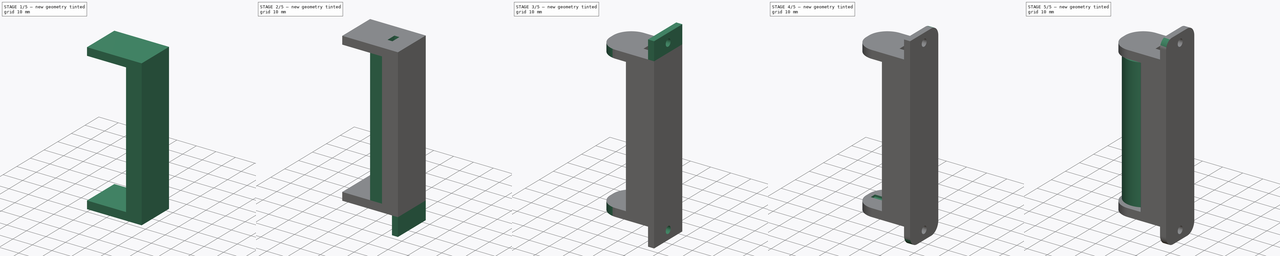
[diagram: build sequence overview — one tinted view per stage of 5, left to right]
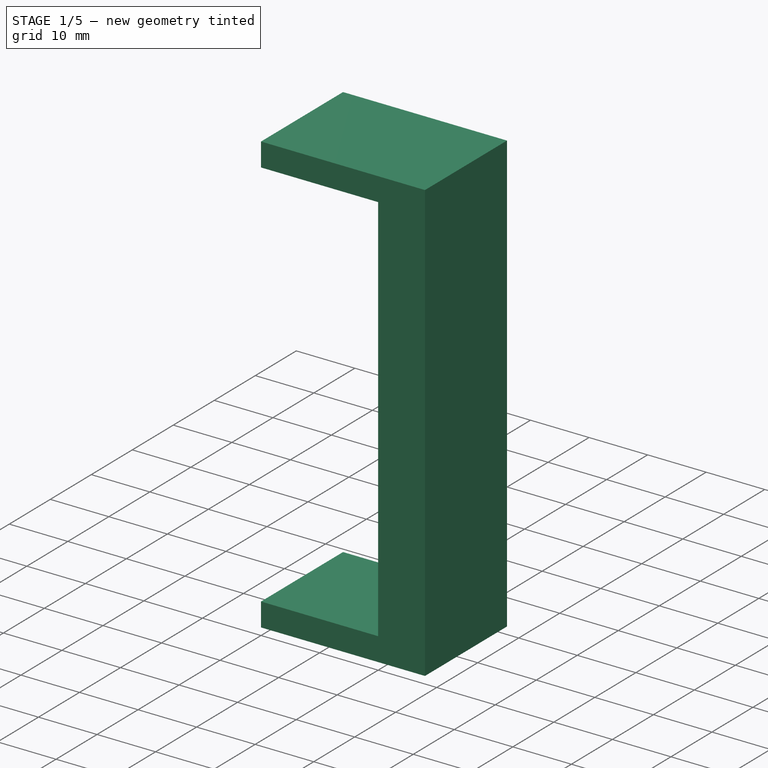
[diagram: stage 1 of 5 — iso view after this stage's code; geometry added in this stage tinted green]
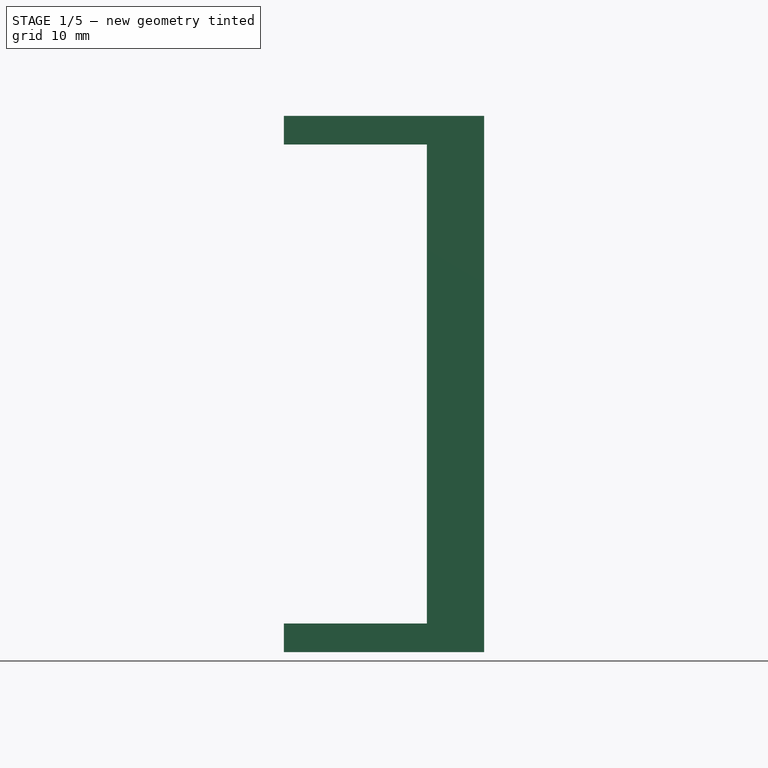
[diagram: stage 1 of 5 — front view after this stage's code; geometry added in this stage tinted green]
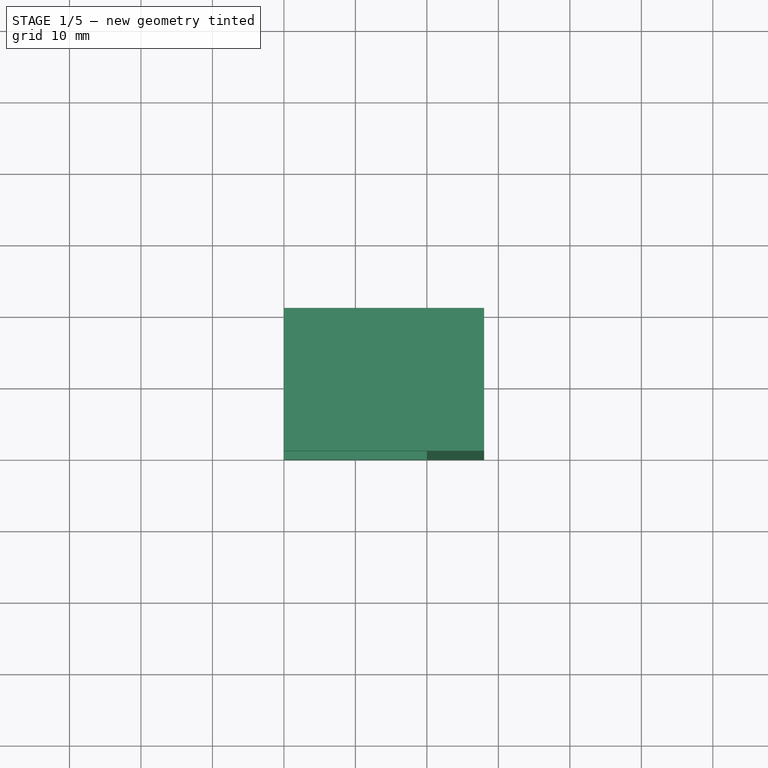
[diagram: stage 1 of 5 — top view after this stage's code; geometry added in this stage tinted green]
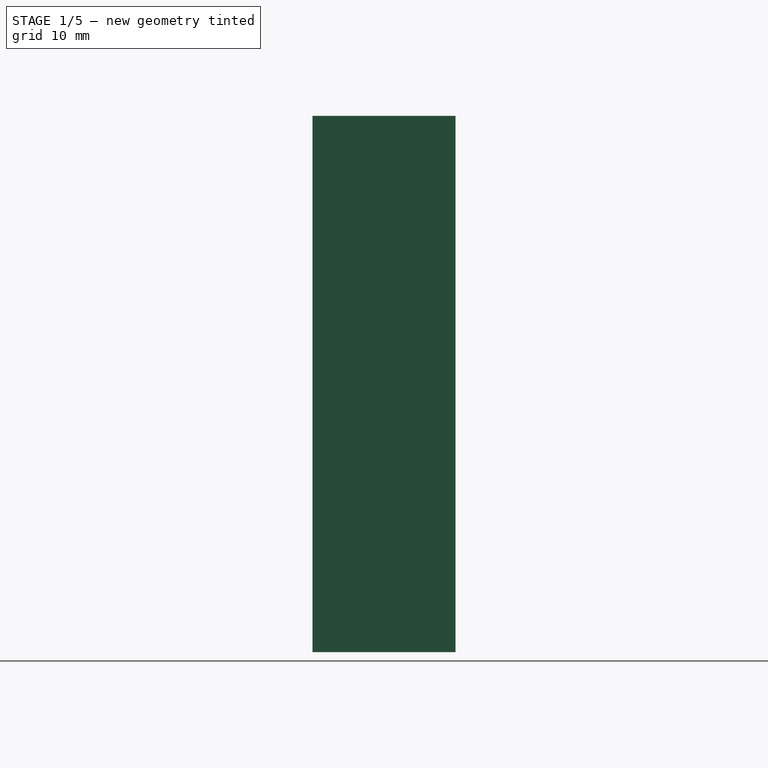
[diagram: stage 1 of 5 — right view after this stage's code; geometry added in this stage tinted green]
FCSTD DOCUMENT  (FreeCAD 0.18.4R)
Label: pinza18650
License: All rights reserved
LicenseURL: http://en.wikipedia.org/wiki/All_rights_reserved
objects: Sketcher::SketchObject×9, PartDesign::Pad×6, PartDesign::Fillet×4, PartDesign::Pocket×3, PartDesign::Body×2, PartDesign::Point×2, PartDesign::PolarPattern×2, PartDesign::Line×1
note: 38 computed .brp shape members not serialized (recipe doc carries the construction recipe); baked Part::Feature solids carry a one-line shape summary decoded from their .brp

FEATURE [PartDesign::Body] Body
  Group = -> [Sketch,Pad]
  Origin = -> Origin
  Tip = -> Pad
FEATURE [Sketcher::SketchObject] Sketch001
  AttachmentOffset = pos=(0,0,-1) rot=(0,0,1;0rad)
  MapMode = 5
  Placement = pos=(0,0,-1) rot=(0,0,1;0rad)
  Support = -> [XY_Plane001]
  sketch-geometry (6):
    g0: LineSegment StartX=-10 StartY=10 StartZ=0 EndX=18 EndY=10 EndZ=0
    g1: LineSegment StartX=18 StartY=10 StartZ=0 EndX=18 EndY=-10 EndZ=0
    g2: LineSegment StartX=18 StartY=-10 StartZ=0 EndX=-10 EndY=-10 EndZ=0
    g3: LineSegment StartX=-10 StartY=-10 StartZ=0 EndX=-10 EndY=10 EndZ=0
    g4: LineSegment [constr] StartX=-10 StartY=10 StartZ=0 EndX=0 EndY=0 EndZ=0
    g5: LineSegment [constr] StartX=0 StartY=0 StartZ=0 EndX=-10 EndY=-10 EndZ=0
  constraints (16):
    c: Coincident(g0,g1)
    c: Coincident(g1,g2)
    c: Coincident(g2,g3)
    c: Coincident(g3,g0)
    c: Horizontal(g0)
    c: Horizontal(g2)
    c: Vertical(g1)
    c: Vertical(g3)
    c: Equal(g4,g5)
    c: Coincident(g4,g0)
    c: Coincident(g5,g2)
    c: Coincident(g5,g4)
    c: Coincident(g4,g-1)
    c: DistanceY(g3,g3) = 20
    c: DistanceX(g0,g-1) = 10
    c: DistanceX(g0,g0) = 28
FEATURE [PartDesign::Pad] Pad001
  Length = 4
  Length2 = 100
  Profile = -> Sketch001
  Reversed = true
  Type = 0
FEATURE [Sketcher::SketchObject] Sketch002
  ExternalGeometry = -> [Pad001]
  MapMode = 5
  Placement = pos=(0,0,-1) rot=(0,0,1;0rad)
  Support = -> [Pad001]
  sketch-geometry (4):
    g0: LineSegment StartX=10 StartY=10 StartZ=0 EndX=18 EndY=10 EndZ=0
    g1: LineSegment StartX=18 StartY=10 StartZ=0 EndX=18 EndY=-10 EndZ=0
    g2: LineSegment StartX=18 StartY=-10 StartZ=0 EndX=10 EndY=-10 EndZ=0
    g3: LineSegment StartX=10 StartY=-10 StartZ=0 EndX=10 EndY=10 EndZ=0
  constraints (10):
    c: Coincident(g0,g1)
    c: Coincident(g1,g2)
    c: Coincident(g2,g3)
    c: Coincident(g3,g0)
    c: Horizontal(g0)
    c: Horizontal(g2)
    c: Vertical(g3)
    c: Coincident(g0,g-3)
    c: Coincident(g1,g-3)
    c: DistanceX(g0,g0) = 8
FEATURE [PartDesign::Pad] Pad002
  BaseFeature = -> Pad001
  Length = 67
  Length2 = 100
  Profile = -> Sketch002
  Type = 0
FEATURE [Sketcher::SketchObject] Sketch003
  ExternalGeometry = -> [Pad002]
  MapMode = 5
  Placement = pos=(0,0,66) rot=(0,0,1;0rad)
  Support = -> [Pad002]
  sketch-geometry (4):
    g0: LineSegment StartX=-10 StartY=10 StartZ=0 EndX=18 EndY=10 EndZ=0
    g1: LineSegment StartX=18 StartY=10 StartZ=0 EndX=18 EndY=-10 EndZ=0
    g2: LineSegment StartX=18 StartY=-10 StartZ=0 EndX=-10 EndY=-10 EndZ=0
    g3: LineSegment StartX=-10 StartY=-10 StartZ=0 EndX=-10 EndY=10 EndZ=0
  constraints (8):
    c: Coincident(g0,g1)
    c: Coincident(g1,g2)
    c: Coincident(g2,g3)
    c: Coincident(g3,g0)
    c: Coincident(g0,g-4)
    c: Coincident(g2,g-5)
    c: Coincident(g1,g-7)
    c: Coincident(g0,g-8)
FEATURE [PartDesign::Pad] Pad003
  BaseFeature = -> Pad002
  Length = 4
  Length2 = 100
  Profile = -> Sketch003
  Type = 0
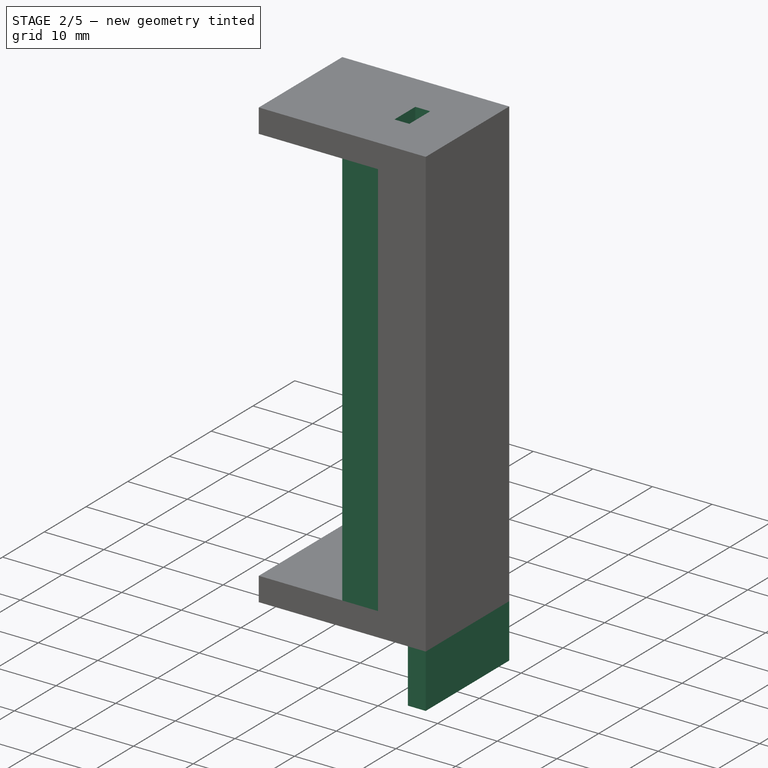
[diagram: stage 2 of 5 — iso view after this stage's code; geometry added in this stage tinted green]
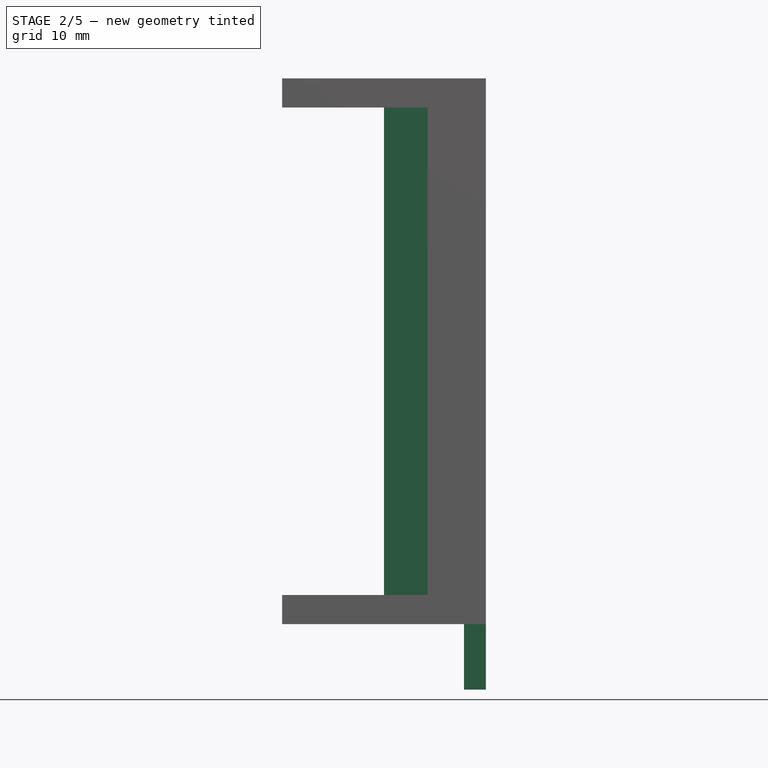
[diagram: stage 2 of 5 — front view after this stage's code; geometry added in this stage tinted green]
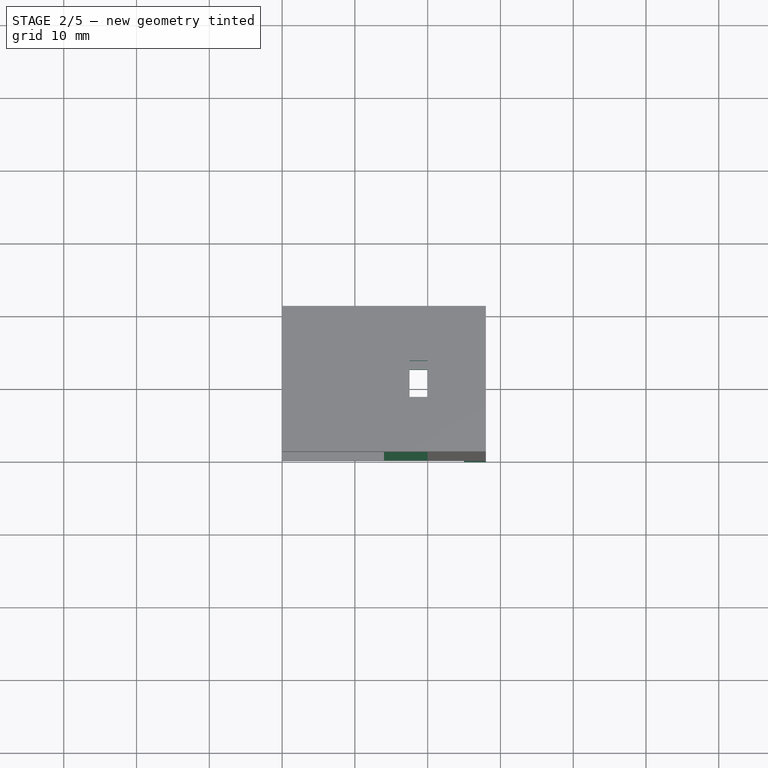
[diagram: stage 2 of 5 — top view after this stage's code; geometry added in this stage tinted green]
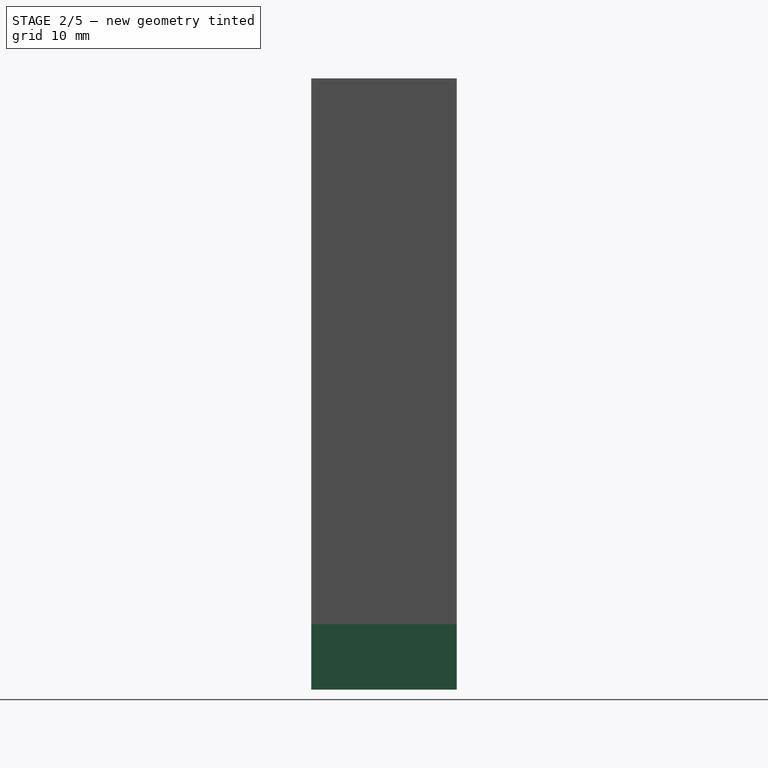
[diagram: stage 2 of 5 — right view after this stage's code; geometry added in this stage tinted green]
FEATURE [Sketcher::SketchObject] Sketch004
  ExternalGeometry = -> [Pad003]
  MapMode = 5
  Placement = pos=(0,0,-5) rot=(1,0,0;3.14159rad)
  Support = -> [Pad003]
  sketch-geometry (4):
    g0: LineSegment StartX=7.5 StartY=2.5 StartZ=0 EndX=10 EndY=2.5 EndZ=0
    g1: LineSegment StartX=10 StartY=2.5 StartZ=0 EndX=10 EndY=-2.5 EndZ=0
    g2: LineSegment StartX=10 StartY=-2.5 StartZ=0 EndX=7.5 EndY=-2.5 EndZ=0
    g3: LineSegment StartX=7.5 StartY=-2.5 StartZ=0 EndX=7.5 EndY=2.5 EndZ=0
  constraints (12):
    c: Coincident(g0,g1)
    c: Coincident(g1,g2)
    c: Coincident(g2,g3)
    c: Coincident(g3,g0)
    c: Horizontal(g0)
    c: Horizontal(g2)
    c: Vertical(g1)
    c: Vertical(g3)
    c: DistanceY(g-1,g0) = 2.5
    c: DistanceY(g1,g-1) = 2.5
    c: DistanceX(g0,g0) = 2.5
    c: PointOnObject(g1,g-3)
FEATURE [PartDesign::Pocket] Pocket
  BaseFeature = -> Pad003
  Length = 5
  Length2 = 100
  Profile = -> Sketch004
  Type = 1
FEATURE [Sketcher::SketchObject] Sketch005
  ExternalGeometry = -> [Pocket]
  MapMode = 5
  Placement = pos=(0,0,-5) rot=(1,0,0;3.14159rad)
  Support = -> [Pocket]
  sketch-geometry (6):
    g0: LineSegment StartX=10 StartY=-10 StartZ=0 EndX=4 EndY=-10 EndZ=0
    g1: LineSegment StartX=4 StartY=-10 StartZ=0 EndX=10 EndY=-6 EndZ=0
    g2: LineSegment StartX=10 StartY=-6 StartZ=0 EndX=10 EndY=-10 EndZ=0
    g3: LineSegment StartX=10 StartY=6 StartZ=0 EndX=4 EndY=10 EndZ=0
    g4: LineSegment StartX=4 StartY=10 StartZ=0 EndX=10 EndY=10 EndZ=0
    g5: LineSegment StartX=10 StartY=10 StartZ=0 EndX=10 EndY=6 EndZ=0
  constraints (16):
    c: Coincident(g0,g1)
    c: Coincident(g1,g2)
    c: Coincident(g2,g0)
    c: Coincident(g0,g-4)
    c: PointOnObject(g1,g-4)
    c: PointOnObject(g0,g-3)
    c: DistanceY(g2,g2) = 4
    c: DistanceX(g0,g0) = 6
    c: Coincident(g3,g4)
    c: Coincident(g4,g5)
    c: Coincident(g5,g3)
    c: Coincident(g4,g-5)
    c: PointOnObject(g3,g-6)
    c: PointOnObject(g3,g-5)
    c: DistanceY(g5,g5) = 4
    c: DistanceX(g4,g4) = 6
FEATURE [PartDesign::Pad] Pad004
  BaseFeature = -> Pocket
  Length = 75
  Length2 = 100
  Profile = -> Sketch005
  Reversed = true
  Type = 0
FEATURE [Sketcher::SketchObject] Sketch006
  ExternalGeometry = -> [Pad004]
  MapMode = 5
  Placement = pos=(0,0,-5) rot=(1,0,0;3.14159rad)
  Support = -> [Pad004]
  sketch-geometry (4):
    g0: LineSegment StartX=15 StartY=10 StartZ=0 EndX=18 EndY=10 EndZ=0
    g1: LineSegment StartX=18 StartY=10 StartZ=0 EndX=18 EndY=-10 EndZ=0
    g2: LineSegment StartX=18 StartY=-10 StartZ=0 EndX=15 EndY=-10 EndZ=0
    g3: LineSegment StartX=15 StartY=-10 StartZ=0 EndX=15 EndY=10 EndZ=0
  constraints (10):
    c: Coincident(g0,g1)
    c: Coincident(g1,g2)
    c: Coincident(g2,g3)
    c: Coincident(g3,g0)
    c: Horizontal(g0)
    c: Horizontal(g2)
    c: Vertical(g3)
    c: Coincident(g1,g-3)
    c: Coincident(g0,g-3)
    c: DistanceX(g0,g0) = 3
FEATURE [PartDesign::Point] DatumPoint
  AttacherType = Attacher::AttachEnginePoint
  MapMode = 37
  Placement = pos=(18,0,32.5) rot=(0,0,1;0rad)
  Support = -> [Pad004]
FEATURE [PartDesign::Pad] Pad005
  BaseFeature = -> Pad004
  Length = 9
  Length2 = 100
  Profile = -> Sketch006
  Type = 0
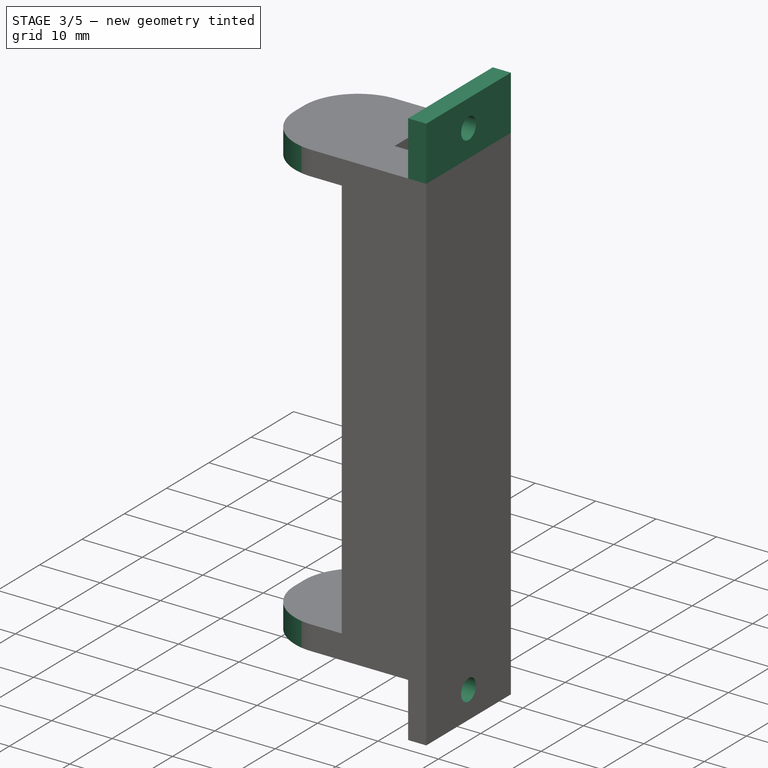
[diagram: stage 3 of 5 — iso view after this stage's code; geometry added in this stage tinted green]
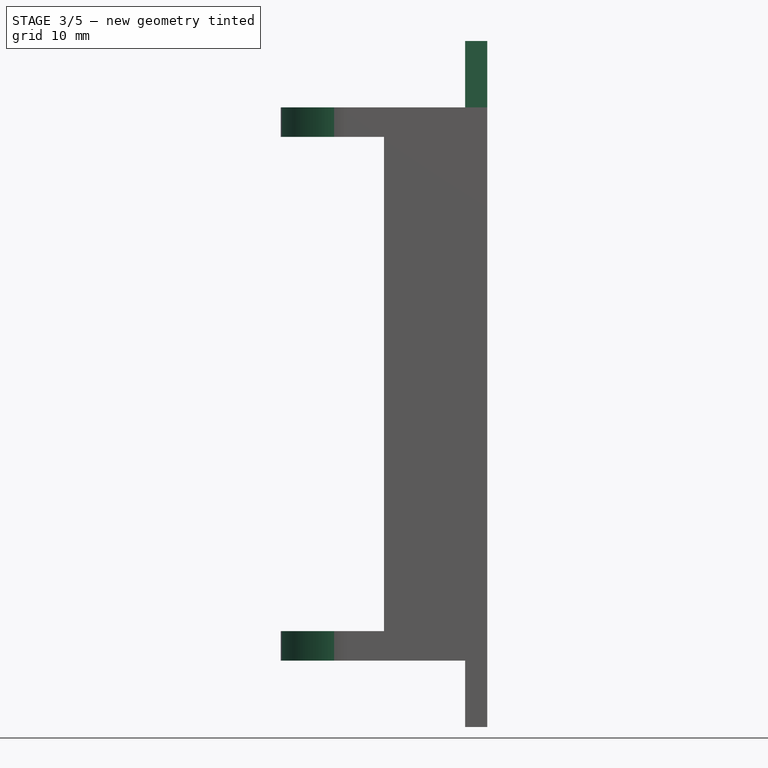
[diagram: stage 3 of 5 — front view after this stage's code; geometry added in this stage tinted green]
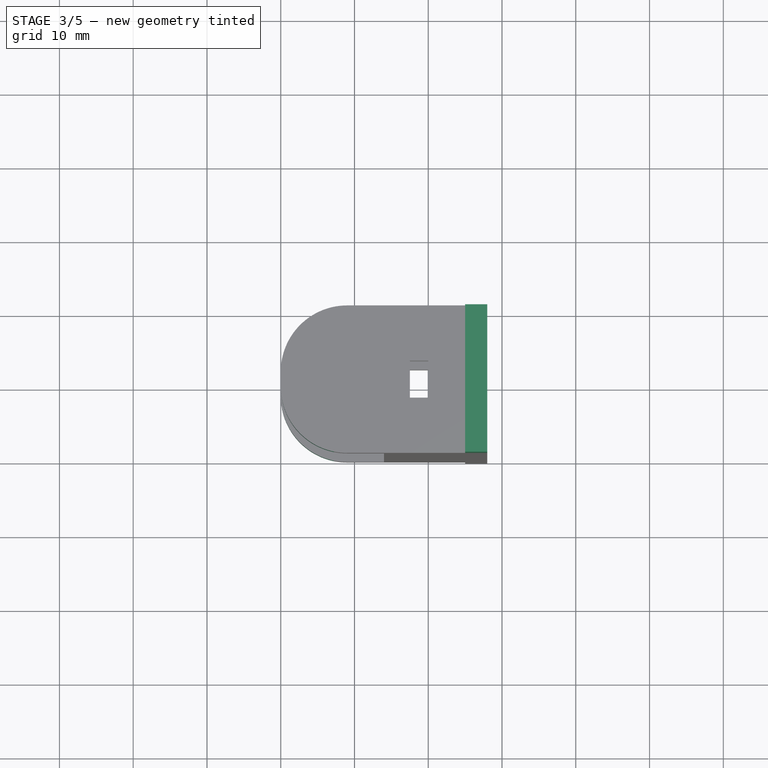
[diagram: stage 3 of 5 — top view after this stage's code; geometry added in this stage tinted green]
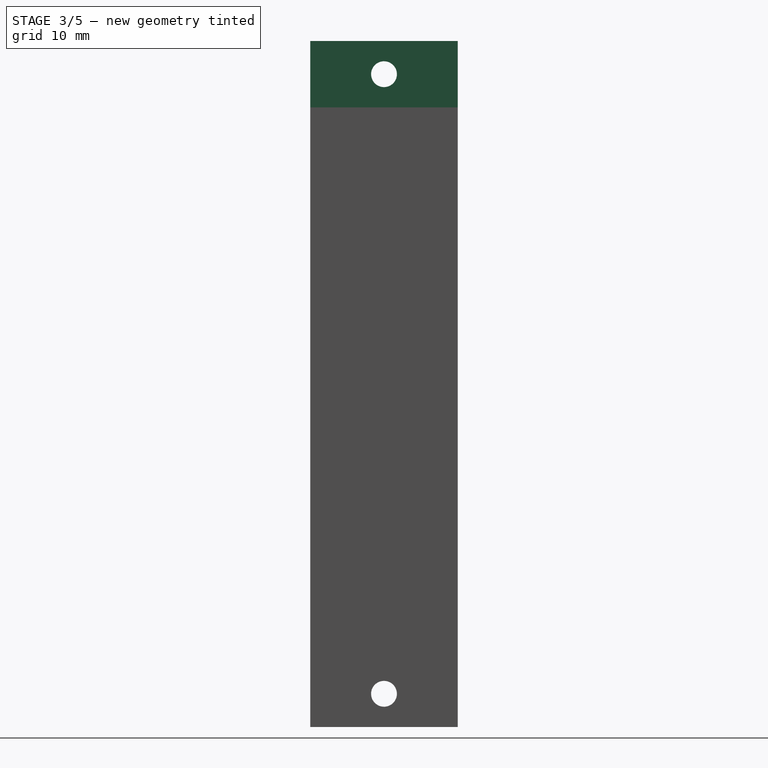
[diagram: stage 3 of 5 — right view after this stage's code; geometry added in this stage tinted green]
FEATURE [PartDesign::Point] DatumPoint001
  AttacherType = Attacher::AttachEnginePoint
  MapMode = 37
  Placement = pos=(18,0,-9.5) rot=(0,0,1;0rad)
  Support = -> [Pad005]
FEATURE [Sketcher::SketchObject] Sketch007
  ExternalGeometry = -> [DatumPoint001]
  MapMode = 5
  Placement = pos=(18,0,0) rot=(0.57735,0.57735,0.57735;2.0944rad)
  Support = -> [Pad005]
  sketch-geometry (1):
    g0: Circle CenterX=0 CenterY=-9.5 CenterZ=0 NormalX=0 NormalY=0 NormalZ=1 AngleXU=0 Radius=1.75
  constraints (2):
    c: Diameter(g0) = 3.5
    c: Coincident(g0,g-3)
FEATURE [PartDesign::Pocket] Pocket001
  BaseFeature = -> Pad005
  Length = 5
  Length2 = 100
  Profile = -> Sketch007
  Type = 1
FEATURE [PartDesign::Line] DatumLine
  AttacherType = Attacher::AttachEngineLine
  MapMode = 16
  Placement = pos=(18,0,32.5) rot=(0.57735,0.57735,0.57735;2.0944rad)
  Support = -> [DatumPoint]
FEATURE [PartDesign::PolarPattern] PolarPattern
  Angle = 360
  Axis = -> DatumLine
  BaseFeature = -> Pocket001
  Occurrences = 2
  Originals = -> [Pad005,Pocket001]
FEATURE [PartDesign::Fillet] Fillet
  Base = -> PolarPattern [Edge30,Edge4,Edge98,Edge99]
  BaseFeature = -> PolarPattern
  Radius = 9
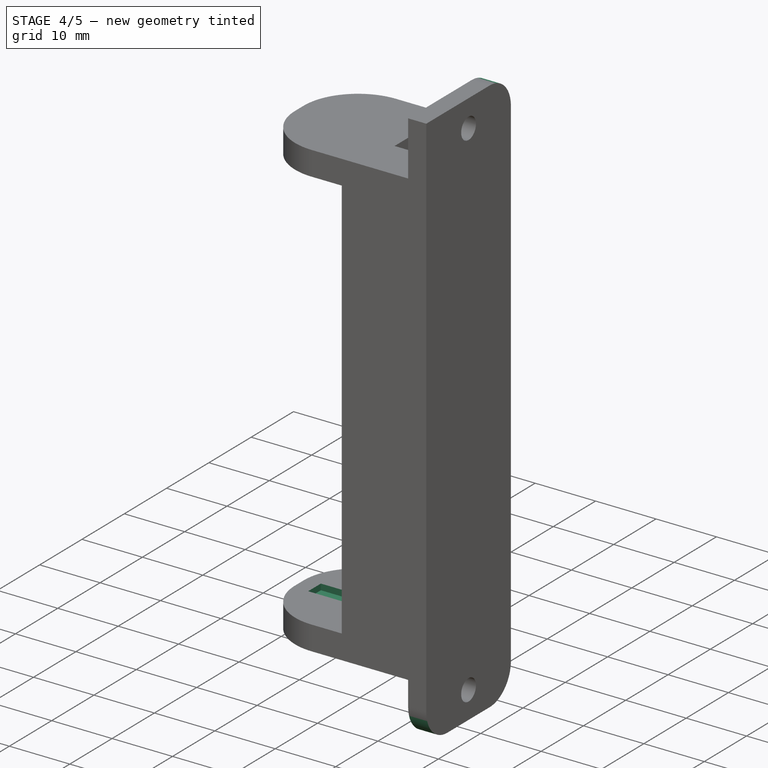
[diagram: stage 4 of 5 — iso view after this stage's code; geometry added in this stage tinted green]
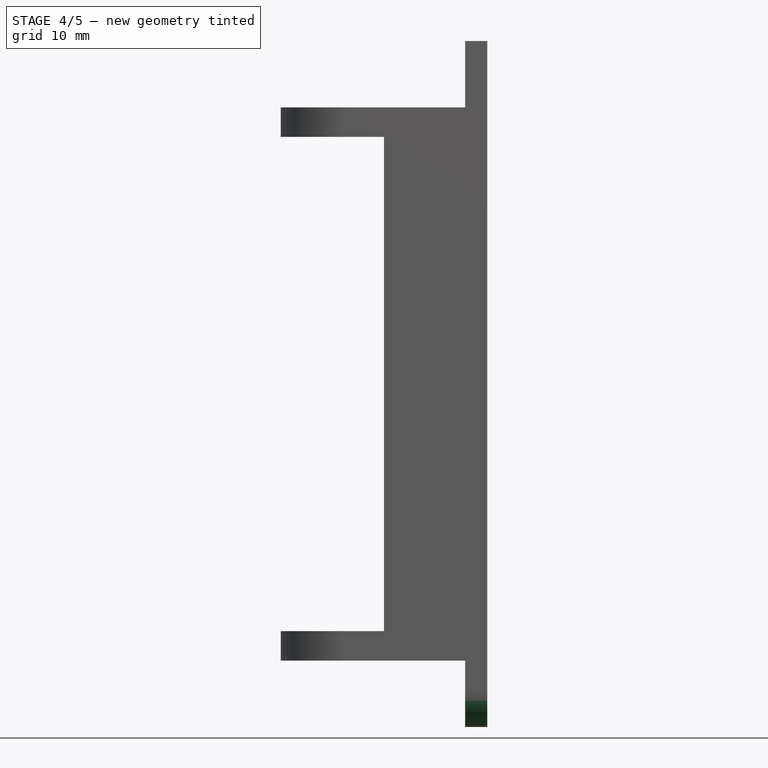
[diagram: stage 4 of 5 — front view after this stage's code; geometry added in this stage tinted green]
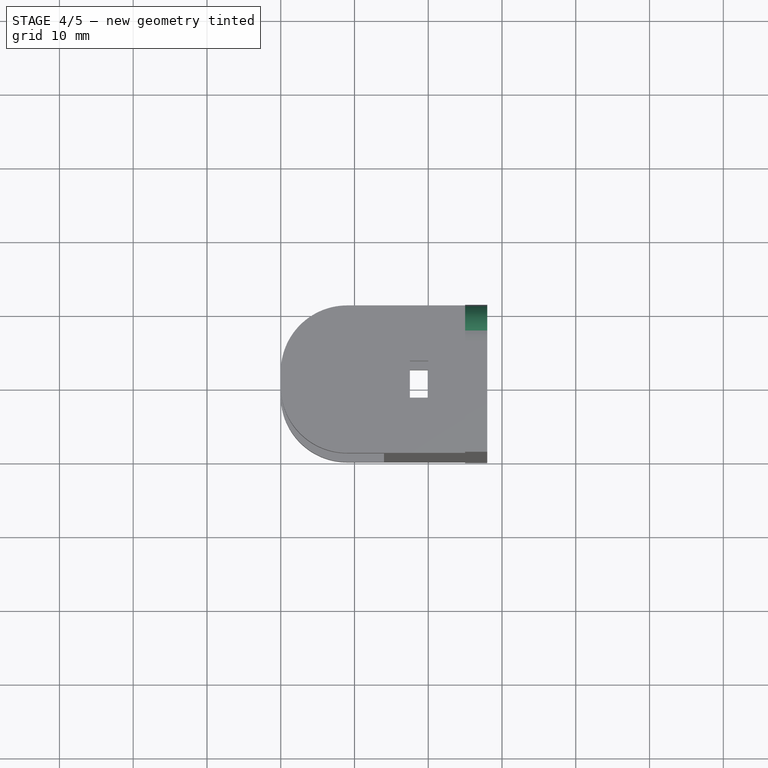
[diagram: stage 4 of 5 — top view after this stage's code; geometry added in this stage tinted green]
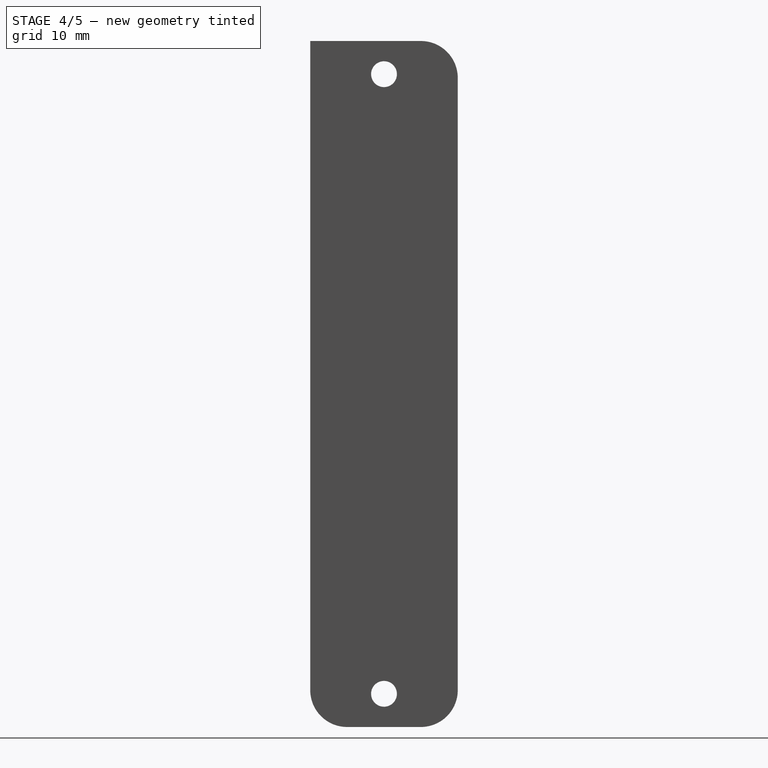
[diagram: stage 4 of 5 — right view after this stage's code; geometry added in this stage tinted green]
FEATURE [PartDesign::Fillet] Fillet001
  Base = -> Fillet [Edge87,Edge91,Vertex78,Edge130]
  BaseFeature = -> Fillet
  Radius = 5
FEATURE [Sketcher::SketchObject] Sketch008
  ExternalGeometry = -> [Fillet001]
  MapMode = 5
  Placement = pos=(0,0,66) rot=(1,0,0;3.14159rad)
  Support = -> [Fillet001]
  sketch-geometry (6):
    g0: LineSegment StartX=-7.5 StartY=1.5 StartZ=0 EndX=7.5 EndY=1.5 EndZ=0
    g1: LineSegment StartX=7.5 StartY=1.5 StartZ=0 EndX=7.5 EndY=-1.5 EndZ=0
    g2: LineSegment StartX=7.5 StartY=-1.5 StartZ=0 EndX=-7.5 EndY=-1.5 EndZ=0
    g3: LineSegment StartX=-7.5 StartY=-1.5 StartZ=0 EndX=-7.5 EndY=1.5 EndZ=0
    g4: LineSegment [constr] StartX=-7.5 StartY=1.5 StartZ=0 EndX=0 EndY=0 EndZ=0
    g5: LineSegment [constr] StartX=0 StartY=0 StartZ=0 EndX=-7.5 EndY=-1.5 EndZ=0
  constraints (16):
    c: Coincident(g0,g1)
    c: Coincident(g1,g2)
    c: Coincident(g2,g3)
    c: Coincident(g3,g0)
    c: Horizontal(g0)
    c: Horizontal(g2)
    c: Vertical(g3)
    c: PointOnObject(g0,g-3)
    c: PointOnObject(g1,g-3)
    c: Coincident(g4,g0)
    c: Coincident(g5,g4)
    c: Coincident(g5,g-1)
    c: Coincident(g5,g2)
    c: Equal(g4,g5)
    c: DistanceX(g0,g0) = 15
    c: DistanceY(g3,g3) = 3
FEATURE [PartDesign::Pocket] Pocket002
  BaseFeature = -> Fillet001
  Length = 1
  Length2 = 100
  Profile = -> Sketch008
  Type = 0
FEATURE [PartDesign::PolarPattern] PolarPattern001
  Angle = 360
  Axis = -> DatumLine
  BaseFeature = -> Pocket002
  Occurrences = 2
  Originals = -> [Pocket002]
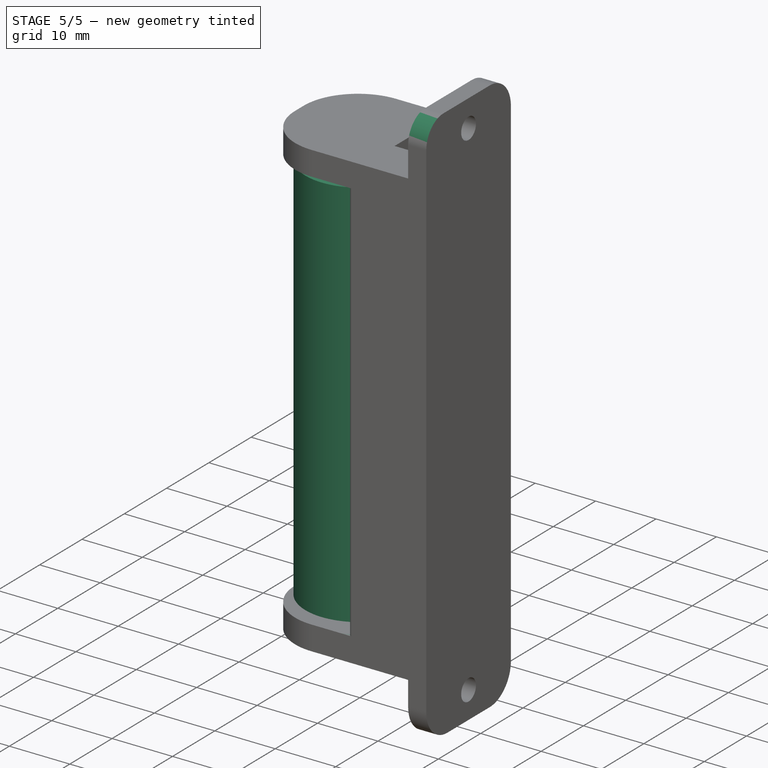
[diagram: stage 5 of 5 — iso view after this stage's code; geometry added in this stage tinted green]
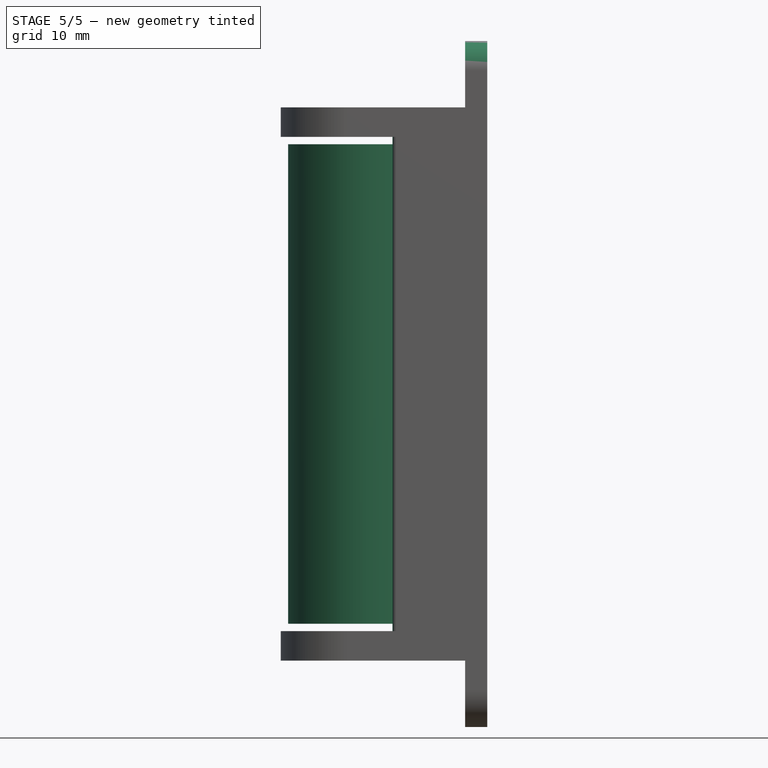
[diagram: stage 5 of 5 — front view after this stage's code; geometry added in this stage tinted green]
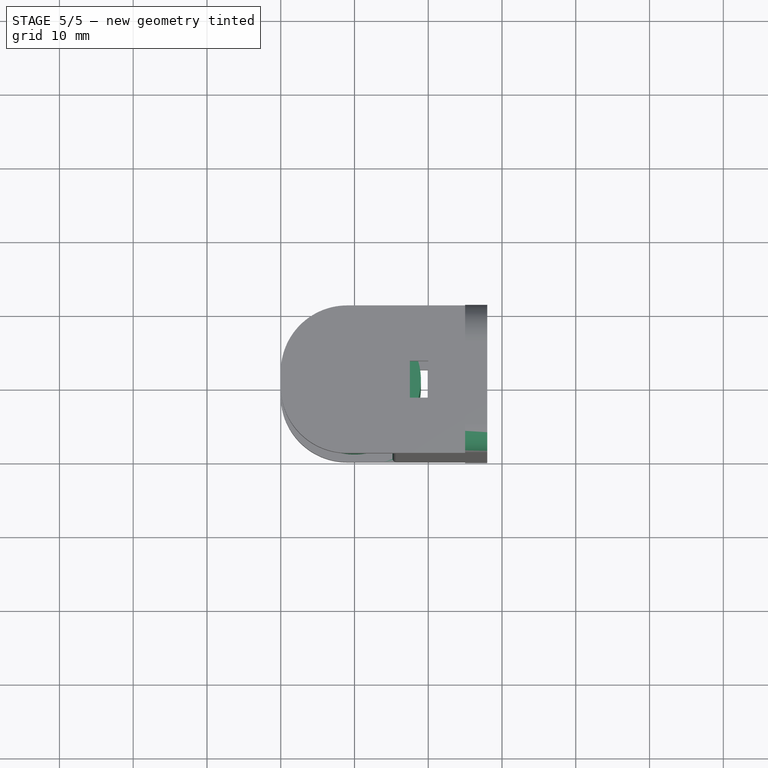
[diagram: stage 5 of 5 — top view after this stage's code; geometry added in this stage tinted green]
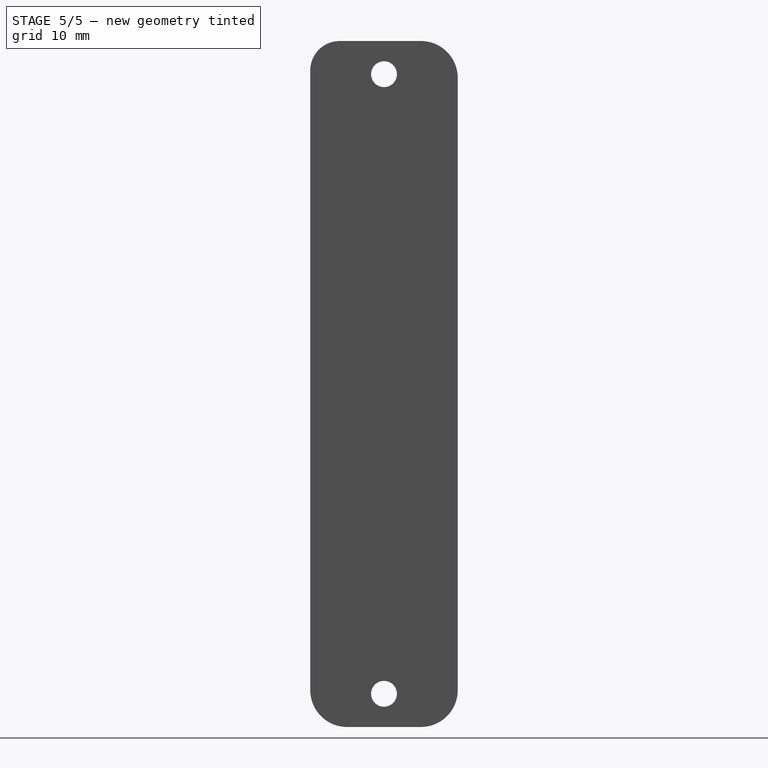
[diagram: stage 5 of 5 — right view after this stage's code; geometry added in this stage tinted green]
FEATURE [Sketcher::SketchObject] Sketch
  MapMode = 5
  Support = -> [XY_Plane]
  sketch-geometry (1):
    g0: Circle CenterX=0 CenterY=0 CenterZ=0 NormalX=0 NormalY=0 NormalZ=1 AngleXU=0 Radius=9
  constraints (2):
    c: Radius(g0) = 9
    c: Coincident(g0,g-1)
FEATURE [PartDesign::Pad] Pad
  Length = 65
  Length2 = 100
  Profile = -> Sketch
  Type = 0
FEATURE [PartDesign::Fillet] Fillet002
  Base = -> PolarPattern001 [Edge149]
  BaseFeature = -> PolarPattern001
  Radius = 4
FEATURE [PartDesign::Fillet] Fillet003
  Base = -> Fillet002 [Edge124,Edge53]
  BaseFeature = -> Fillet002
  Radius = 0.5
FEATURE [PartDesign::Body] Body001
  Group = -> [Sketch001,Pad001,Sketch002,Pad002,Sketch003,Pad003,Sketch004,Pocket,Sketch005,Pad004,Sketch006,DatumPoint,Pad005,DatumPoint001,Sketch007,Pocket001,DatumLine,PolarPattern,Fillet,Fillet001,Sketch008,Pocket002,PolarPattern001,Fillet002,Fillet003]
  Origin = -> Origin001
  Tip = -> Fillet003
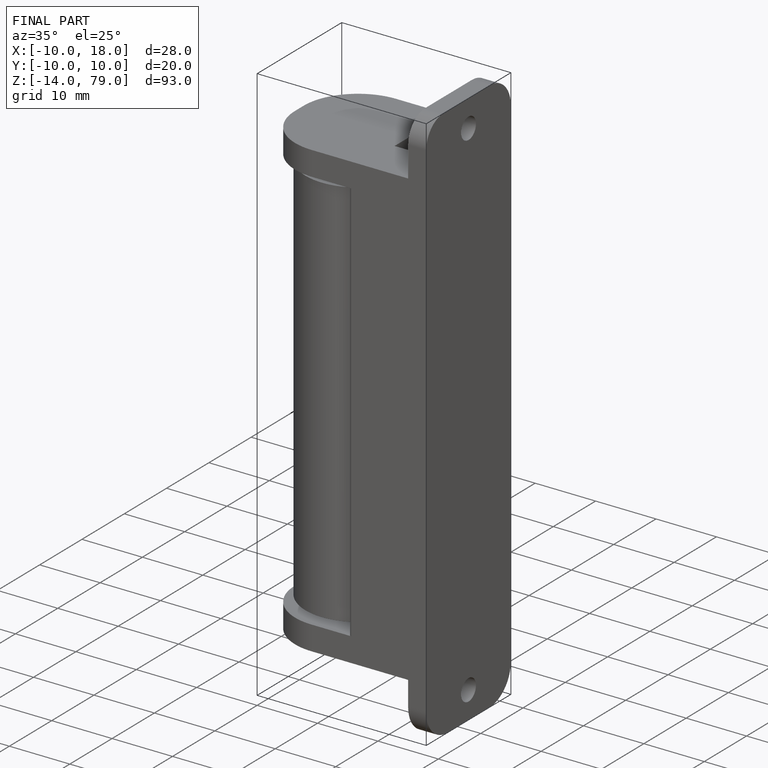
[diagram: finished part — iso view with bounding-box wireframe]
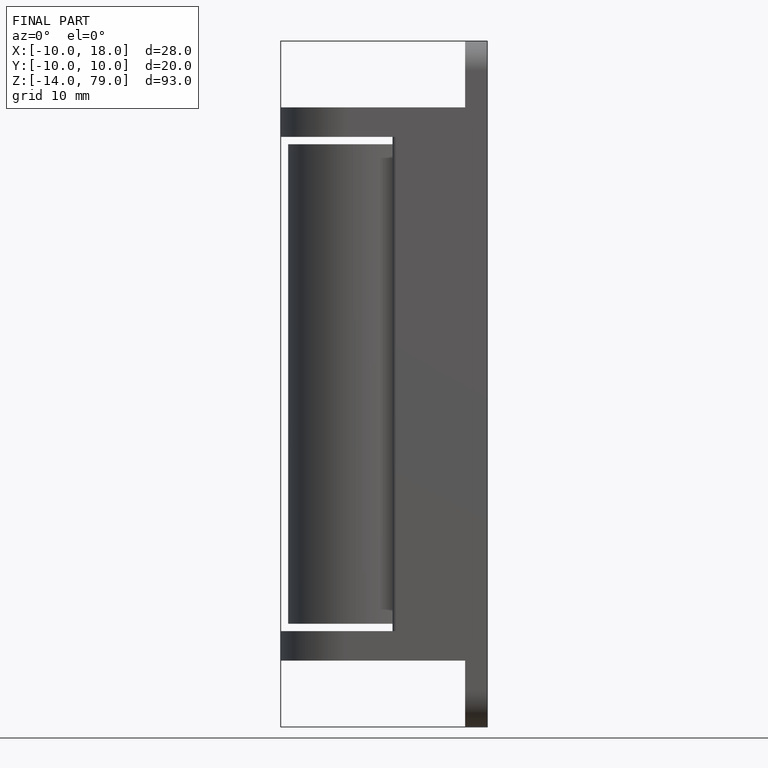
[diagram: finished part — front view with bounding-box wireframe]
